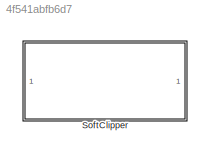
MODEL slx_4f541abfb6d7
KIND library
CONFIG AbsTol = auto
CONFIG EnableMultiTasking = off
CONFIG FixedStep = auto
CONFIG MaxStep = auto
CONFIG MinStep = auto
CONFIG RelTol = 1e-3
CONFIG SampleTimeConstraint = Unconstrained
CONFIG SolverName = VariableStepAuto
CONFIG StartTime = 0.0
CONFIG StopTime = 10.0
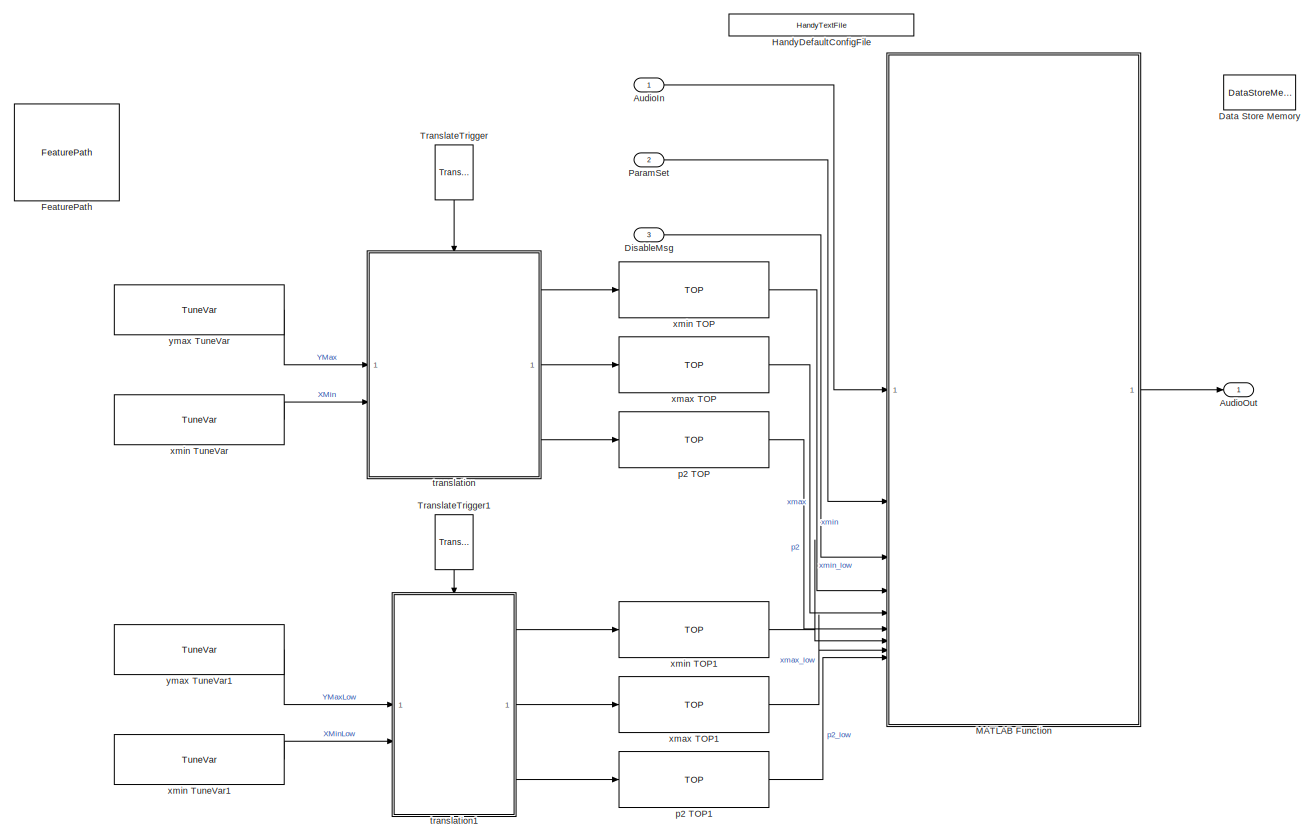
[diagram: SoftClipper - part 1/2, most of the canvas]
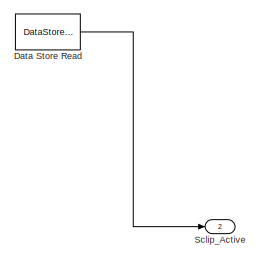
[diagram: SoftClipper - part 2/2, middle right region]
BLOCK [SubSystem] SoftClipper
BLOCK [Outport] SoftClipper/ AudioOut
  VectorParamsAs1DForOutWhenUnconnected = off
BLOCK [Inport] SoftClipper/AudioIn
BLOCK [DataStoreMemory] SoftClipper/Data Store Memory
  DataStoreName = Sclip_Active
  OutDataTypeStr = uint32
  ShowAdditionalParam = off
  SignalType = real
BLOCK [DataStoreRead] SoftClipper/Data Store Read
  DataStoreName = Sclip_Active
  IndexOptions = Index vector (dialog)
  Indices = 1
  OutputSizes = 1
BLOCK [Inport] SoftClipper/DisableMsg
  Port = 3
BLOCK [Reference] SoftClipper/FeaturePath  REF=FeaturePath/FeaturePath
  SourceBlock = FeaturePath/FeaturePath
  SourceProductName = Bose Talaria
  SourceType = Talaria Feature Path
BLOCK [Reference] SoftClipper/HandyDefaultConfigFile  REF=HandyTextFile/HandyTextFile
  SourceBlock = HandyTextFile/HandyTextFile
  SourceProductName = Bose Talaria
  SourceType = Talaria Handy Text File
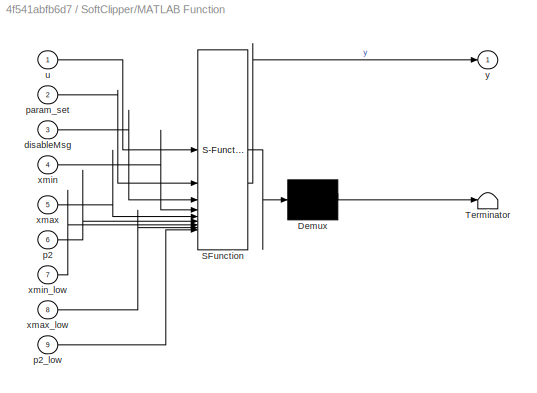
BLOCK [SubSystem] SoftClipper/MATLAB Function
  ErrorFcn = Stateflow.Translate.translate
  PermitHierarchicalResolution = ExplicitOnly
  SFBlockType = MATLAB Function
  TreatAsAtomicUnit = on
BLOCK [Demux] SoftClipper/MATLAB Function/ Demux 
  Outputs = 1
BLOCK [S-Function] SoftClipper/MATLAB Function/ SFunction 
  EnableBusSupport = off
  FunctionName = sf_sfun
  PortCounts = [9 2]
  SFcnIsStateOwnerBlock = off
  SFunctionDeploymentMode = off
  Tag = Stateflow S-Function 2
BLOCK [Terminator] SoftClipper/MATLAB Function/ Terminator 
BLOCK [Inport] SoftClipper/MATLAB Function/disableMsg
  Port = 3
BLOCK [Inport] SoftClipper/MATLAB Function/p2
  Port = 6
BLOCK [Inport] SoftClipper/MATLAB Function/p2_low
  Port = 9
BLOCK [Inport] SoftClipper/MATLAB Function/param_set
  Port = 2
BLOCK [Inport] SoftClipper/MATLAB Function/u
BLOCK [Inport] SoftClipper/MATLAB Function/xmax
  Port = 5
BLOCK [Inport] SoftClipper/MATLAB Function/xmax_low
  Port = 8
BLOCK [Inport] SoftClipper/MATLAB Function/xmin
  Port = 4
BLOCK [Inport] SoftClipper/MATLAB Function/xmin_low
  Port = 7
BLOCK [Outport] SoftClipper/MATLAB Function/y
  VectorParamsAs1DForOutWhenUnconnected = off
BLOCK [Inport] SoftClipper/ParamSet
  Port = 2
BLOCK [Outport] SoftClipper/Sclip_Active
  Port = 2
BLOCK [Reference] SoftClipper/TranslateTrigger  REF=TuneVar/TranslateTrigger
  NameLocation = left
  SourceBlock = TuneVar/TranslateTrigger
  SourceProductName = Bose Talaria
  SourceType = Talaria Translate Trigger
BLOCK [Reference] SoftClipper/TranslateTrigger1  REF=TuneVar/TranslateTrigger
  NameLocation = left
  SourceBlock = TuneVar/TranslateTrigger
  SourceProductName = Bose Talaria
  SourceType = Talaria Translate Trigger
BLOCK [Reference] SoftClipper/p2 TOP  REF=TOP/TOP
  SourceBlock = TOP/TOP
  SourceProductName = Bose Talaria
  SourceType = Talaria Target Overlay Parameter
BLOCK [Reference] SoftClipper/p2 TOP1  REF=TOP/TOP
  SourceBlock = TOP/TOP
  SourceProductName = Bose Talaria
  SourceType = Talaria Target Overlay Parameter
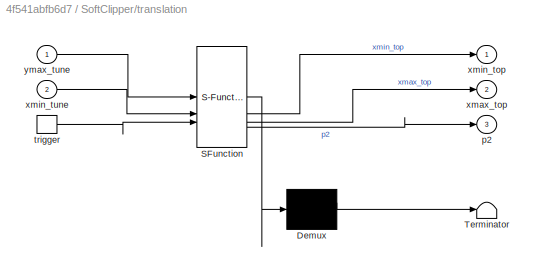
BLOCK [SubSystem] SoftClipper/translation
  ErrorFcn = Stateflow.Translate.translate
  PermitHierarchicalResolution = ExplicitOnly
  SFBlockType = MATLAB Function
  TreatAsAtomicUnit = on
BLOCK [Demux] SoftClipper/translation/ Demux 
  Outputs = 1
BLOCK [S-Function] SoftClipper/translation/ SFunction 
  EnableBusSupport = off
  FunctionName = sf_sfun
  PortCounts = [3 4]
  SFcnIsStateOwnerBlock = off
  SFunctionDeploymentMode = off
  Tag = Stateflow S-Function 1
BLOCK [Terminator] SoftClipper/translation/ Terminator 
BLOCK [Outport] SoftClipper/translation/p2
  Port = 3
  VectorParamsAs1DForOutWhenUnconnected = off
BLOCK [TriggerPort] SoftClipper/translation/trigger
  ShowOutputPort = on
  StatesWhenEnabling = held
  TriggerType = function-call
  VariantControl = (inherit)
BLOCK [Outport] SoftClipper/translation/xmax_top
  Port = 2
  VectorParamsAs1DForOutWhenUnconnected = off
BLOCK [Outport] SoftClipper/translation/xmin_top
  VectorParamsAs1DForOutWhenUnconnected = off
BLOCK [Inport] SoftClipper/translation/xmin_tune
  Port = 2
BLOCK [Inport] SoftClipper/translation/ymax_tune
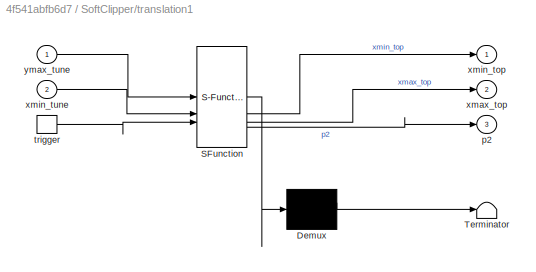
BLOCK [SubSystem] SoftClipper/translation1
  ErrorFcn = Stateflow.Translate.translate
  PermitHierarchicalResolution = ExplicitOnly
  SFBlockType = MATLAB Function
  TreatAsAtomicUnit = on
BLOCK [Demux] SoftClipper/translation1/ Demux 
  Outputs = 1
BLOCK [S-Function] SoftClipper/translation1/ SFunction 
  EnableBusSupport = off
  FunctionName = sf_sfun
  PortCounts = [3 4]
  SFcnIsStateOwnerBlock = off
  SFunctionDeploymentMode = off
  Tag = Stateflow S-Function 8
BLOCK [Terminator] SoftClipper/translation1/ Terminator 
BLOCK [Outport] SoftClipper/translation1/p2
  Port = 3
  VectorParamsAs1DForOutWhenUnconnected = off
BLOCK [TriggerPort] SoftClipper/translation1/trigger
  ShowOutputPort = on
  StatesWhenEnabling = held
  TriggerType = function-call
  VariantControl = Variant
BLOCK [Outport] SoftClipper/translation1/xmax_top
  Port = 2
  VectorParamsAs1DForOutWhenUnconnected = off
BLOCK [Outport] SoftClipper/translation1/xmin_top
  VectorParamsAs1DForOutWhenUnconnected = off
BLOCK [Inport] SoftClipper/translation1/xmin_tune
  Port = 2
BLOCK [Inport] SoftClipper/translation1/ymax_tune
BLOCK [Reference] SoftClipper/xmax TOP  REF=TOP/TOP
  SourceBlock = TOP/TOP
  SourceProductName = Bose Talaria
  SourceType = Talaria Target Overlay Parameter
BLOCK [Reference] SoftClipper/xmax TOP1  REF=TOP/TOP
  SourceBlock = TOP/TOP
  SourceProductName = Bose Talaria
  SourceType = Talaria Target Overlay Parameter
BLOCK [Reference] SoftClipper/xmin TOP  REF=TOP/TOP
  SourceBlock = TOP/TOP
  SourceProductName = Bose Talaria
  SourceType = Talaria Target Overlay Parameter
BLOCK [Reference] SoftClipper/xmin TOP1  REF=TOP/TOP
  SourceBlock = TOP/TOP
  SourceProductName = Bose Talaria
  SourceType = Talaria Target Overlay Parameter
BLOCK [Reference] SoftClipper/xmin TuneVar  REF=TuneVar/TuneVar
  SourceBlock = TuneVar/TuneVar
  SourceProductName = Bose Talaria
  SourceType = Talaria Tune Variable
BLOCK [Reference] SoftClipper/xmin TuneVar1  REF=TuneVar/TuneVar
  SourceBlock = TuneVar/TuneVar
  SourceProductName = Bose Talaria
  SourceType = Talaria Tune Variable
BLOCK [Reference] SoftClipper/ymax TuneVar  REF=TuneVar/TuneVar
  SourceBlock = TuneVar/TuneVar
  SourceProductName = Bose Talaria
  SourceType = Talaria Tune Variable
BLOCK [Reference] SoftClipper/ymax TuneVar1  REF=TuneVar/TuneVar
  SourceBlock = TuneVar/TuneVar
  SourceProductName = Bose Talaria
  SourceType = Talaria Tune Variable
LINE SoftClipper/AudioIn:1 -> SoftClipper/MATLAB Function:1
LINE SoftClipper/Data Store Read:1 -> SoftClipper/Sclip_Active:1
LINE SoftClipper/DisableMsg:1 -> SoftClipper/MATLAB Function:3
LINE SoftClipper/MATLAB Function:1 -> SoftClipper/ AudioOut:1
LINE SoftClipper/ParamSet:1 -> SoftClipper/MATLAB Function:2
LINE SoftClipper/TranslateTrigger1:1 -> SoftClipper/translation1:trigger
LINE SoftClipper/TranslateTrigger:1 -> SoftClipper/translation:trigger
LINE SoftClipper/p2 TOP1:1 -> SoftClipper/MATLAB Function:9
LINE SoftClipper/p2 TOP:1 -> SoftClipper/MATLAB Function:6
LINE SoftClipper/translation1:1 -> SoftClipper/xmin TOP1:1
LINE SoftClipper/translation1:2 -> SoftClipper/xmax TOP1:1
LINE SoftClipper/translation1:3 -> SoftClipper/p2 TOP1:1
LINE SoftClipper/translation:1 -> SoftClipper/xmin TOP:1
LINE SoftClipper/translation:2 -> SoftClipper/xmax TOP:1
LINE SoftClipper/translation:3 -> SoftClipper/p2 TOP:1
LINE SoftClipper/xmax TOP1:1 -> SoftClipper/MATLAB Function:8
LINE SoftClipper/xmax TOP:1 -> SoftClipper/MATLAB Function:5
LINE SoftClipper/xmin TOP1:1 -> SoftClipper/MATLAB Function:7
LINE SoftClipper/xmin TOP:1 -> SoftClipper/MATLAB Function:4
LINE SoftClipper/xmin TuneVar1:1 -> SoftClipper/translation1:2
LINE SoftClipper/xmin TuneVar:1 -> SoftClipper/translation:2
LINE SoftClipper/ymax TuneVar1:1 -> SoftClipper/translation1:1
LINE SoftClipper/ymax TuneVar:1 -> SoftClipper/translation:1
CHART SoftClipper/translation states=1 transitions=1
  STATE_LABEL 'eML_blk_kernel()'
  STATE_LABEL 'SCRIPT:\nfunction [xmin_top,xmax_top, p2] = fcn(ymax_tune, xmin_tune)\n\n% Translates Ymax and Xmin to Xmax and Xmin\n\nxmin_top = xmin_tune.Value;\nxmax_top = 2 * ymax_tune.Value - xmin_top;\n\n% p2 remains 0 unless below condition is met\n% p2 is later used in the gain redux function \np2 = 0;\nif (xmax_top ~= xmin_top)\n    p2 = 1 / (2 * (xmax_top - xmin_top));\nend\n'
CHART SoftClipper/MATLAB Function states=1 transitions=1
  STATE_LABEL 'eML_blk_kernel()'
  STATE_LABEL 'SCRIPT:\nfunction y = softclip(u, param_set, disableMsg, xmin, xmax, p2, xmin_low, xmax_low, p2_low)\n\n% This is the main function for the Soft-Clipper\n% It takes in audio, typically from the Limiter, and applies a gain\n% reduction when appropriate. \n% It takes in two sets of tunable parameters.\n% Each set represents values corresponding to a car that either stays on,\n% or shuts off, when idling. \ny...<+1015ch>'
CHART SoftClipper/translation1 states=1 transitions=1
  STATE_LABEL 'eML_blk_kernel()'
  STATE_LABEL 'SCRIPT:\nfunction [xmin_top,xmax_top, p2] = fcn(ymax_tune, xmin_tune)\n\n% Translates Ymax and Xmin to Xmax and Xmin\n\nxmin_top = xmin_tune.Value;\nxmax_top = 2 * ymax_tune.Value - xmin_top;\n\n% p2 remains 0 unless below condition is met\n% p2 is later used in the gain redux function \np2 = 0;\nif (xmax_top ~= xmin_top)\n    p2 = 1 / (2 * (xmax_top - xmin_top));\nend\n'
CHART  states=0 transitions=0
CHART  states=0 transitions=0
CHART  states=0 transitions=0
